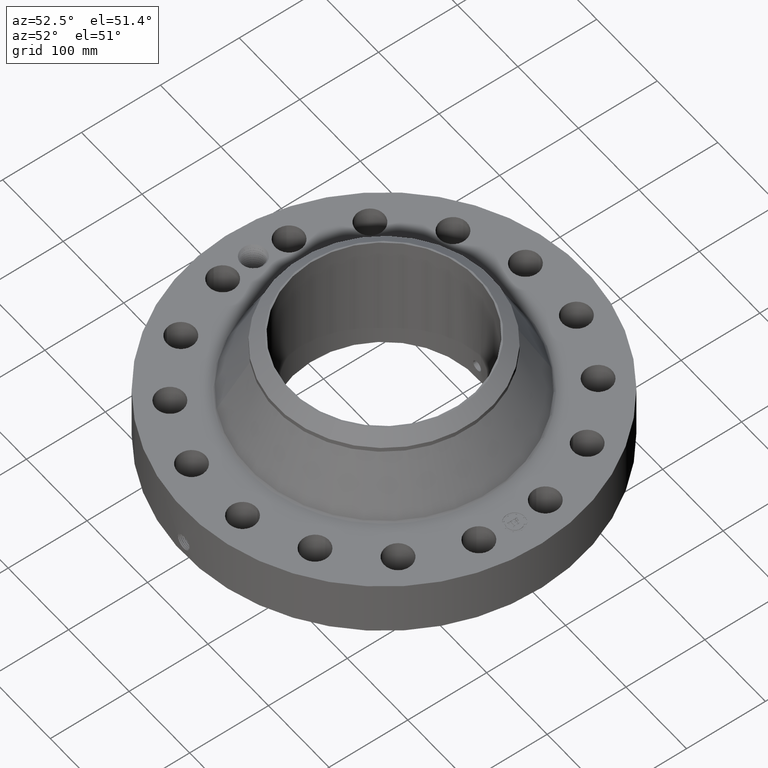
[diagram: clean part render]
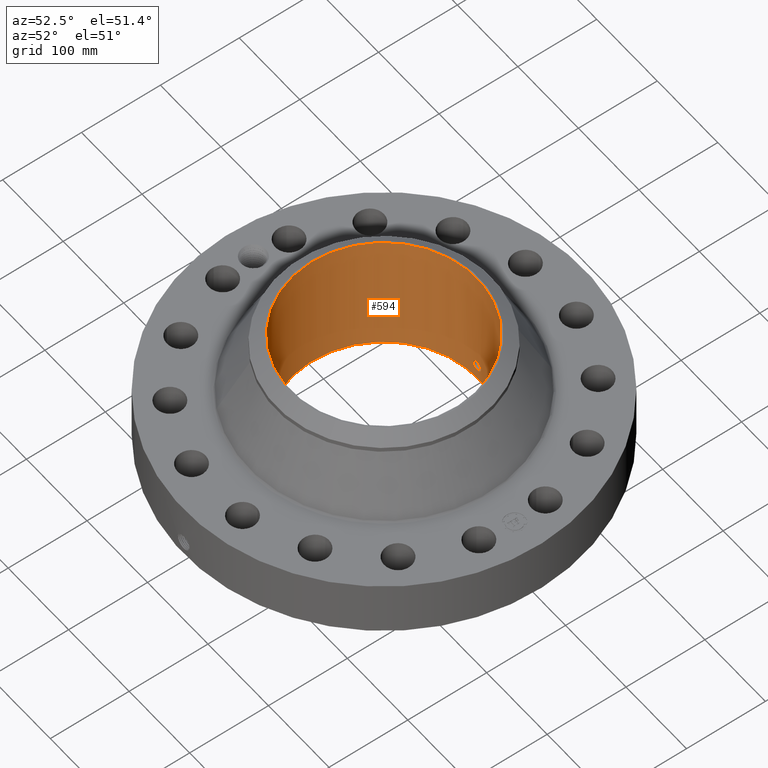
[diagram: same view with one face highlighted and labeled with its STEP entity id]
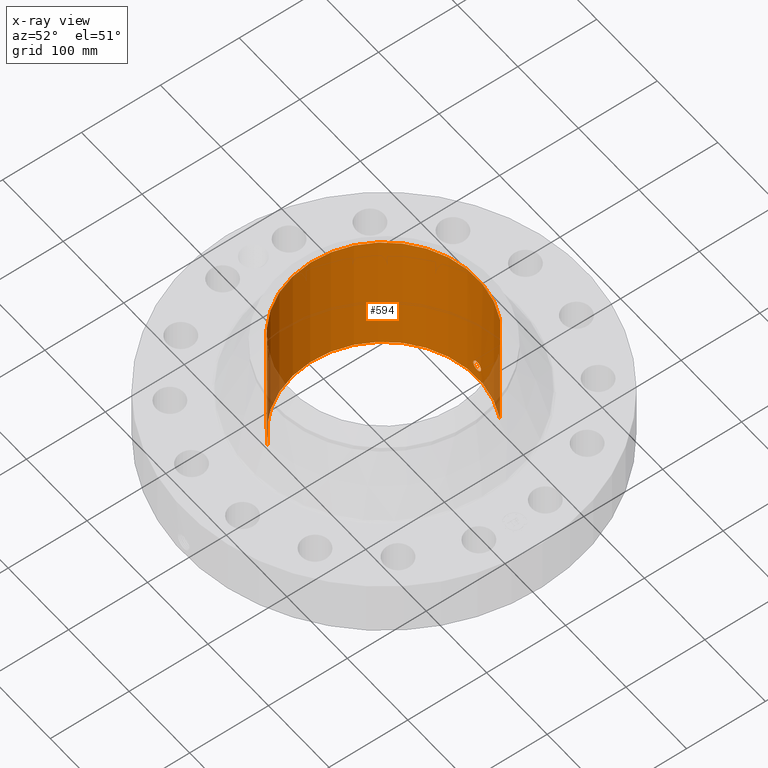
[diagram: x-ray of the same camera — body ghosted, the highlighted face saturated]
A machine part, auxiliary view. The second image highlights one B-rep face of the part: STEP entity #594.
The next image is the same camera in x-ray: the body ghosted, the highlighted face saturated — about 5% of this face is hidden behind the body in this view.
In plain terms, the highlighted cylindrical surface (partial cylindrical patch) has radius 118.262 mm, axis along (0, 0, -1).
Its self-contained STEP definition (entity closure, byte-faithful):
#232=AXIS2_PLACEMENT_3D('Cylinder Axis2P3D',#229,#230,#231) ;
#533=AXIS2_PLACEMENT_3D('Circle Axis2P3D',#531,#532,$) ;
#543=AXIS2_PLACEMENT_3D('Circle Axis2P3D',#541,#542,$) ;
#229=CARTESIAN_POINT('Axis2P3D Location',(0.,0.,3.15600000001)) ;
#238=CARTESIAN_POINT('Vertex',(2.23220530775,4.08602440818,6.31200000003)) ;
#240=CARTESIAN_POINT('Vertex',(-2.23220530775,-4.08602440818,6.31200000003)) ;
#243=CARTESIAN_POINT('Line Origine',(2.23220530775,4.08602440818,3.15600000001)) ;
#247=CARTESIAN_POINT('Vertex',(2.23220530775,4.08602440818,-2.01413688877E-014)) ;
#254=CARTESIAN_POINT('Vertex',(-2.23220530775,-4.08602440818,-2.01413688877E-014)) ;
#257=CARTESIAN_POINT('Line Origine',(-2.23220530775,-4.08602440818,3.15600000001)) ;
#531=CARTESIAN_POINT('Axis2P3D Location',(0.,0.,6.31200000003)) ;
#541=CARTESIAN_POINT('Axis2P3D Location',(0.,0.,-2.01413688877E-014)) ;
#553=CARTESIAN_POINT('Control Point',(0.219395640473,4.65082805026,0.869856384655)) ;
#554=CARTESIAN_POINT('Control Point',(0.206921776959,4.65141648554,0.892689638659)) ;
#555=CARTESIAN_POINT('Control Point',(0.191478568414,4.65210308224,0.91389818088)) ;
#556=CARTESIAN_POINT('Control Point',(0.173346016175,4.65283477794,0.932969341334)) ;
#557=CARTESIAN_POINT('Control Point',(0.112142349321,4.65495090574,0.982445025315)) ;
#558=CARTESIAN_POINT('Control Point',(0.0349919119978,4.65632574452,1.00597116978)) ;
#559=CARTESIAN_POINT('Control Point',(-0.0195497004813,4.65642859733,1.00761227907)) ;
#560=CARTESIAN_POINT('Control Point',(-0.124131909875,4.65491572033,0.982475398257)) ;
#561=CARTESIAN_POINT('Control Point',(-0.203174919388,4.65178351909,0.909576307241)) ;
#562=CARTESIAN_POINT('Control Point',(-0.232155176339,4.65024104785,0.863368413873)) ;
#563=CARTESIAN_POINT('Control Point',(-0.255831228308,4.64897066977,0.785209495137)) ;
#564=CARTESIAN_POINT('Control Point',(-0.248299207076,4.64937446704,0.705814245673)) ;
#565=CARTESIAN_POINT('Control Point',(-0.242065039766,4.64971362262,0.679225430002)) ;
#566=CARTESIAN_POINT('Control Point',(-0.232325571901,4.65021810069,0.653811696072)) ;
#567=CARTESIAN_POINT('Control Point',(-0.219395640473,4.65082805026,0.630143615351)) ;
#568=CARTESIAN_POINT('Vertex',(0.219395640473,4.65082805026,0.869856384655)) ;
#570=CARTESIAN_POINT('Vertex',(-0.219395640473,4.65082805026,0.630143615351)) ;
#574=CARTESIAN_POINT('Control Point',(-0.219395640473,4.65082805026,0.630143615351)) ;
#575=CARTESIAN_POINT('Control Point',(-0.206921776953,4.65141648554,0.607310361335)) ;
#576=CARTESIAN_POINT('Control Point',(-0.191478568397,4.65210308224,0.586101819103)) ;
#577=CARTESIAN_POINT('Control Point',(-0.173346016195,4.65283477794,0.567030658688)) ;
#578=CARTESIAN_POINT('Control Point',(-0.112142349324,4.65495090574,0.517554974688)) ;
#579=CARTESIAN_POINT('Control Point',(-0.0349919119737,4.65632574452,0.494028830219)) ;
#580=CARTESIAN_POINT('Control Point',(0.01954970046,4.65642859733,0.492387720926)) ;
#581=CARTESIAN_POINT('Control Point',(0.124131909904,4.65491572033,0.51752460175)) ;
#582=CARTESIAN_POINT('Control Point',(0.203174919443,4.65178351909,0.590423692816)) ;
#583=CARTESIAN_POINT('Control Point',(0.232155176318,4.65024104785,0.636631586063)) ;
#584=CARTESIAN_POINT('Control Point',(0.255831228312,4.64897066977,0.714790504835)) ;
#585=CARTESIAN_POINT('Control Point',(0.248299207076,4.64937446704,0.794185754335)) ;
#586=CARTESIAN_POINT('Control Point',(0.242065039765,4.64971362262,0.820774570004)) ;
#587=CARTESIAN_POINT('Control Point',(0.232325571901,4.65021810069,0.846188303934)) ;
#588=CARTESIAN_POINT('Control Point',(0.219395640473,4.65082805026,0.869856384655)) ;
#230=DIRECTION('Axis2P3D Direction',(0.,0.,-0.0393700787402)) ;
#231=DIRECTION('Axis2P3D XDirection',(-0.0188750212049,-0.0345504945626,0.)) ;
#244=DIRECTION('Vector Direction',(0.,0.,-0.0393700787402)) ;
#258=DIRECTION('Vector Direction',(0.,0.,-0.0393700787402)) ;
#532=DIRECTION('Axis2P3D Direction',(0.,0.,-0.0393700787402)) ;
#542=DIRECTION('Axis2P3D Direction',(0.,0.,-0.0393700787402)) ;
#245=VECTOR('Line Direction',#244,0.0393700787402) ;
#259=VECTOR('Line Direction',#258,0.0393700787402) ;
#547=ORIENTED_EDGE('',*,*,#535,.F.) ;
#548=ORIENTED_EDGE('',*,*,#261,.T.) ;
#549=ORIENTED_EDGE('',*,*,#545,.T.) ;
#550=ORIENTED_EDGE('',*,*,#249,.F.) ;
#591=ORIENTED_EDGE('',*,*,#572,.F.) ;
#592=ORIENTED_EDGE('',*,*,#589,.F.) ;
#593=FACE_BOUND('',#590,.T.) ;
#594=ADVANCED_FACE('PartBody',(#551,#593),#233,.F.) ;
#552=B_SPLINE_CURVE_WITH_KNOTS('',5,(#553,#554,#555,#556,#557,#558,#559,#560,#561,#562,#563,#564,#565,#566,#567),.UNSPECIFIED.,.F.,.U.,(6,3,3,3,6),(0.,4.67422465843,14.0219202202,23.3718963294,28.2170194336),.UNSPECIFIED.) ;
#573=B_SPLINE_CURVE_WITH_KNOTS('',5,(#574,#575,#576,#577,#578,#579,#580,#581,#582,#583,#584,#585,#586,#587,#588),.UNSPECIFIED.,.F.,.U.,(6,3,3,3,6),(0.,4.6742246609,14.0219202247,23.3718963404,28.2170194446),.UNSPECIFIED.) ;
#534=CIRCLE('generated circle',#533,4.65600000002) ;
#544=CIRCLE('generated circle',#543,4.65600000002) ;
#233=CYLINDRICAL_SURFACE('generated cylinder',#232,4.65600000002) ;
#249=EDGE_CURVE('',#239,#248,#246,.T.) ;
#261=EDGE_CURVE('',#241,#255,#260,.T.) ;
#535=EDGE_CURVE('',#241,#239,#534,.T.) ;
#545=EDGE_CURVE('',#255,#248,#544,.T.) ;
#572=EDGE_CURVE('',#569,#571,#552,.T.) ;
#589=EDGE_CURVE('',#571,#569,#573,.T.) ;
#546=EDGE_LOOP('',(#547,#548,#549,#550)) ;
#590=EDGE_LOOP('',(#591,#592)) ;
#551=FACE_OUTER_BOUND('',#546,.T.) ;
#246=LINE('Line',#243,#245) ;
#260=LINE('Line',#257,#259) ;
#239=VERTEX_POINT('',#238) ;
#241=VERTEX_POINT('',#240) ;
#248=VERTEX_POINT('',#247) ;
#255=VERTEX_POINT('',#254) ;
#569=VERTEX_POINT('',#568) ;
#571=VERTEX_POINT('',#570) ;